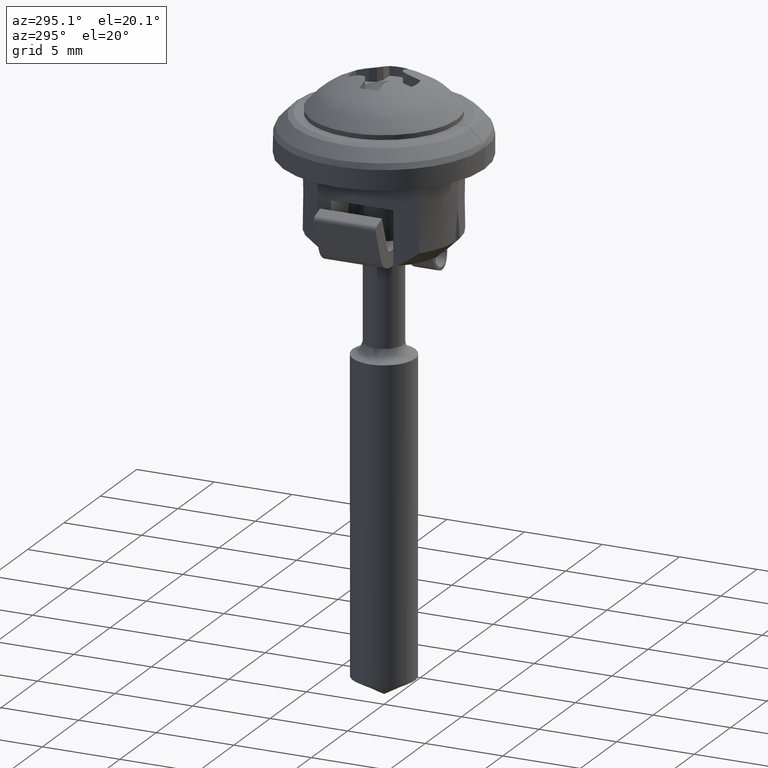
[diagram: clean part render]
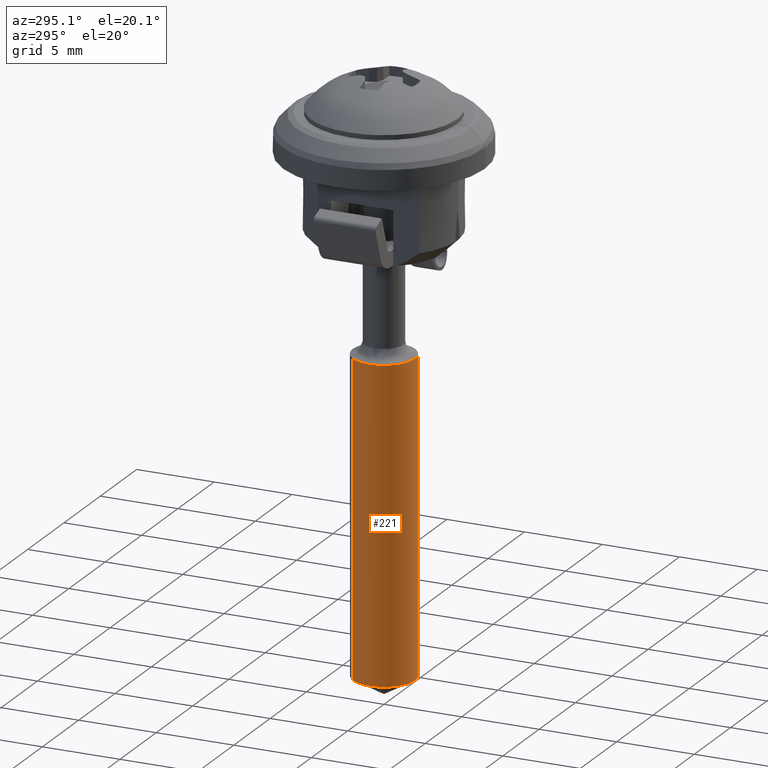
[diagram: same view with one face highlighted and labeled with its STEP entity id]
A machine part, auxiliary view. The second image highlights one B-rep face of the part: STEP entity #221.
In plain terms, the highlighted face is a freeform B-spline surface patch.
Its self-contained STEP definition (entity closure, byte-faithful):
#32=CARTESIAN_POINT('',(1.461278135000820,-1.365527669488460,-35.000000000001457));
#33=VERTEX_POINT('',#32);
#44=CARTESIAN_POINT('',(-0.000000396939959,-2.000000000000016,-35.000000000001457));
#45=VERTEX_POINT('',#44);
#46=CARTESIAN_POINT('',(1.461278135000820,-1.365527669488460,-35.000000000001457));
#47=CARTESIAN_POINT('',(1.350594617280834,-1.484024576685712,-35.000000000001421));
#48=CARTESIAN_POINT('',(1.159496121187633,-1.644144424096314,-35.000000000001592));
#49=CARTESIAN_POINT('',(0.853841220453767,-1.815903695160158,-35.000000000001343));
#50=CARTESIAN_POINT('',(0.494928560566127,-1.955680452918894,-35.000000000001577));
#51=CARTESIAN_POINT('',(0.196290678284867,-2.000073512705633,-35.000000000001393));
#52=CARTESIAN_POINT('',(-0.000000396939959,-2.000000000000016,-35.000000000001457));
#53=B_SPLINE_CURVE_WITH_KNOTS('',3,(#46,#47,#48,#49,#50,#51,#52),.UNSPECIFIED.,.F.,.U.,(4,1,1,1,4),(0.000000011602094,0.486438935696396,0.742460964327394,1.049677550075643,1.638526615176313),.UNSPECIFIED.);
#54=EDGE_CURVE('',#33,#45,#53,.T.);
#56=CARTESIAN_POINT('',(-2.000000000000058,2.449213E-016,-35.000000000001457));
#57=VERTEX_POINT('',#56);
#58=CARTESIAN_POINT('',(-0.000000396939959,-2.000000000000016,-35.000000000001457));
#59=CARTESIAN_POINT('',(-0.196358579747189,-2.000087698067359,-35.000000000001457));
#60=CARTESIAN_POINT('',(-0.531738304925421,-1.950188705849687,-35.000000000001499));
#61=CARTESIAN_POINT('',(-0.948648632512924,-1.774474503584598,-35.000000000001428));
#62=CARTESIAN_POINT('',(-1.283199050538098,-1.550930715162709,-35.000000000001378));
#63=CARTESIAN_POINT('',(-1.591713923337485,-1.242483538605780,-35.000000000001620));
#64=CARTESIAN_POINT('',(-1.823052777175489,-0.861800544181524,-35.000000000001187));
#65=CARTESIAN_POINT('',(-1.967399885217757,-0.433589498179817,-35.000000000002103));
#66=CARTESIAN_POINT('',(-2.000033411269763,-0.155443526981832,-35.000000000000632));
#67=CARTESIAN_POINT('',(-2.000000000000058,2.449213E-016,-35.000000000001457));
#68=B_SPLINE_CURVE_WITH_KNOTS('',3,(#58,#59,#60,#61,#62,#63,#64,#65,#66,#67),.UNSPECIFIED.,.F.,.U.,(4,1,1,1,1,1,1,4),(0.000000038001797,0.589048627535775,1.006302128702715,1.349921911619519,1.791690183834755,2.307121106263391,2.675285291107686,3.141612142028853),.UNSPECIFIED.);
#69=EDGE_CURVE('',#45,#57,#68,.T.);
#98=CARTESIAN_POINT('',(-1.461278135000820,1.365527669488460,-35.000000000001457));
#99=VERTEX_POINT('',#98);
#100=CARTESIAN_POINT('',(-2.000000000000058,2.449213E-016,-35.000000000001457));
#101=CARTESIAN_POINT('',(-2.000022529779380,0.140915788646491,-35.000000000001357));
#102=CARTESIAN_POINT('',(-1.972582902947172,0.399245016286654,-35.000000000001677));
#103=CARTESIAN_POINT('',(-1.865939720617946,0.744669748737319,-35.000000000001137));
#104=CARTESIAN_POINT('',(-1.704359566766486,1.067671701898822,-35.000000000002323));
#105=CARTESIAN_POINT('',(-1.557507633074588,1.262586030764244,-35.000000000000838));
#106=CARTESIAN_POINT('',(-1.461278135000820,1.365527669488460,-35.000000000001457));
#107=B_SPLINE_CURVE_WITH_KNOTS('',3,(#100,#101,#102,#103,#104,#105,#106),.UNSPECIFIED.,.F.,.U.,(4,1,1,1,4),(9.923131E-009,0.422743491771442,0.775022460100573,1.080342697789781,1.503086179633076),.UNSPECIFIED.);
#108=EDGE_CURVE('',#57,#99,#107,.T.);
#139=CARTESIAN_POINT('',(1.461278227660982,-1.365527715340922,-14.499999999999950));
#140=CARTESIAN_POINT('',(0.095750512320059,-2.826805943001905,-14.499999999999957));
#141=CARTESIAN_POINT('',(-1.365527715340922,-1.461278227660982,-14.499999999999950));
#142=CARTESIAN_POINT('',(-2.826805943001905,-0.095750512320059,-14.499999999999957));
#143=CARTESIAN_POINT('',(-1.461278227660982,1.365527715340922,-14.499999999999950));
#144=CARTESIAN_POINT('',(1.461278227660982,-1.365527715340922,-35.512500000001502));
#145=CARTESIAN_POINT('',(0.095750512320059,-2.826805943001905,-35.512500000001495));
#146=CARTESIAN_POINT('',(-1.365527715340922,-1.461278227660982,-35.512500000001502));
#147=CARTESIAN_POINT('',(-2.826805943001905,-0.095750512320059,-35.512500000001495));
#148=CARTESIAN_POINT('',(-1.461278227660982,1.365527715340922,-35.512500000001502));
#156=(BOUNDED_SURFACE()B_SPLINE_SURFACE(2,1,((#139,#144),(#140,#145),(#141,#146),(#142,#147),(#143,#148)),.UNSPECIFIED.,.F.,.F.,.U.)B_SPLINE_SURFACE_WITH_KNOTS((3,2,3),(2,2),(0.0,3.313708498984851,6.627416997969702),(0.0,21.012500000001559),.UNSPECIFIED.)GEOMETRIC_REPRESENTATION_ITEM()RATIONAL_B_SPLINE_SURFACE(((1.0,1.0),(0.707106781186548,0.707106781186548),(1.0,1.0),(0.707106781186548,0.707106781186548),(1.0,1.0)))REPRESENTATION_ITEM('')SURFACE());
#157=CARTESIAN_POINT('',(1.461278206727064,-1.365527737836028,-15.000000000000110));
#158=VERTEX_POINT('',#157);
#159=CARTESIAN_POINT('',(0.025117570299442,-1.999842270691993,-15.0));
#160=VERTEX_POINT('',#159);
#161=CARTESIAN_POINT('',(1.461278206727064,-1.365527737836028,-15.000000000000110));
#162=CARTESIAN_POINT('',(1.312199073641682,-1.525279903959694,-15.000000000000110));
#163=CARTESIAN_POINT('',(1.069020042107538,-1.711940175091765,-15.000000000000080));
#164=CARTESIAN_POINT('',(0.678414149874184,-1.890348634005936,-15.000000000000050));
#165=CARTESIAN_POINT('',(0.369377238296665,-1.976203097075063,-15.000000000000060));
#166=CARTESIAN_POINT('',(0.134348528226660,-1.998475586376248,-14.999999999999989));
#167=CARTESIAN_POINT('',(0.025117570299442,-1.999842270691993,-15.0));
#168=B_SPLINE_CURVE_WITH_KNOTS('',3,(#161,#162,#163,#164,#165,#166,#167),.UNSPECIFIED.,.F.,.U.,(4,1,1,1,4),(0.000000010743756,0.655451025343510,0.907539344752042,1.285685397334760,1.613407520649747),.UNSPECIFIED.);
#169=EDGE_CURVE('',#158,#160,#168,.T.);
#170=ORIENTED_EDGE('',*,*,#169,.T.);
#171=CARTESIAN_POINT('',(-1.999368377924439,-0.050260191171898,-14.999999999999989));
#172=VERTEX_POINT('',#171);
#173=CARTESIAN_POINT('',(0.025117570299442,-1.999842270691993,-15.0));
#174=CARTESIAN_POINT('',(-0.129071443465561,-2.001811261889504,-14.999999999999959));
#175=CARTESIAN_POINT('',(-0.380990307931207,-1.975691963652963,-15.000000000000011));
#176=CARTESIAN_POINT('',(-0.762883342539345,-1.861001481736335,-14.999999999999970));
#177=CARTESIAN_POINT('',(-1.053396429593514,-1.711819671236879,-15.000000000000060));
#178=CARTESIAN_POINT('',(-1.345820884929963,-1.491899708491571,-14.999999999999901));
#179=CARTESIAN_POINT('',(-1.565409606825322,-1.261610799805767,-15.000000000000041));
#180=CARTESIAN_POINT('',(-1.767650196885106,-0.956340716586229,-14.999999999999909));
#181=CARTESIAN_POINT('',(-1.938518006484904,-0.568261970984527,-15.000000000000030));
#182=CARTESIAN_POINT('',(-1.994557652564470,-0.244987002028327,-14.999999999999959));
#183=CARTESIAN_POINT('',(-1.999368377924439,-0.050260191171898,-14.999999999999989));
#184=B_SPLINE_CURVE_WITH_KNOTS('',3,(#173,#174,#175,#176,#177,#178,#179,#180,#181,#182,#183),.UNSPECIFIED.,.F.,.U.,(4,1,1,1,1,1,1,1,4),(0.000000039314255,0.462598775801138,0.754768584273720,1.193029792240995,1.436508061716133,1.850392093116192,2.142565529535078,2.532131454371108,3.116464643544250),.UNSPECIFIED.);
#185=EDGE_CURVE('',#160,#172,#184,.T.);
#186=ORIENTED_EDGE('',*,*,#185,.T.);
#187=CARTESIAN_POINT('',(-2.000000000000055,0.0,-14.999999999999989));
#188=VERTEX_POINT('',#187);
#189=CARTESIAN_POINT('',(-1.999368377924439,-0.050260191171898,-14.999999999999989));
#190=CARTESIAN_POINT('',(-2.000000000000055,0.0,-14.999999999999989));
#191=QUASI_UNIFORM_CURVE('',1,(#189,#190),.UNSPECIFIED.,.F.,.U.);
#192=EDGE_CURVE('',#172,#188,#191,.T.);
#193=ORIENTED_EDGE('',*,*,#192,.T.);
#194=CARTESIAN_POINT('',(-1.461278206727064,1.365527737836028,-15.000000000000099));
#195=VERTEX_POINT('',#194);
#196=CARTESIAN_POINT('',(-2.000000000000055,0.0,-14.999999999999989));
#197=CARTESIAN_POINT('',(-2.000039738592971,0.164403427244278,-14.999999999999980));
#198=CARTESIAN_POINT('',(-1.966020823808397,0.438381229651344,-15.000000000000041));
#199=CARTESIAN_POINT('',(-1.849327747566118,0.780351646180814,-15.000000000000041));
#200=CARTESIAN_POINT('',(-1.694880571137315,1.080247890819866,-15.000000000000080));
#201=CARTESIAN_POINT('',(-1.557507588521093,1.262584848376534,-15.000000000000099));
#202=CARTESIAN_POINT('',(-1.461278206727064,1.365527737836028,-15.000000000000099));
#203=B_SPLINE_CURVE_WITH_KNOTS('',3,(#196,#197,#198,#199,#200,#201,#202),.UNSPECIFIED.,.F.,.U.,(4,1,1,1,4),(9.924287E-009,0.493201747270864,0.821999711707216,1.080342725249536,1.503086217841004),.UNSPECIFIED.);
#204=EDGE_CURVE('',#188,#195,#203,.T.);
#205=ORIENTED_EDGE('',*,*,#204,.T.);
#206=CARTESIAN_POINT('',(-1.461278206727064,1.365527737836028,-15.000000000000099));
#207=CARTESIAN_POINT('',(-1.461278135000820,1.365527669488460,-35.000000000001457));
#208=QUASI_UNIFORM_CURVE('',1,(#206,#207),.UNSPECIFIED.,.F.,.U.);
#209=EDGE_CURVE('',#195,#99,#208,.T.);
#210=ORIENTED_EDGE('',*,*,#209,.T.);
#211=ORIENTED_EDGE('',*,*,#108,.F.);
#212=ORIENTED_EDGE('',*,*,#69,.F.);
#213=ORIENTED_EDGE('',*,*,#54,.F.);
#214=CARTESIAN_POINT('',(1.461278206727064,-1.365527737836028,-15.000000000000110));
#215=CARTESIAN_POINT('',(1.461278135000820,-1.365527669488460,-35.000000000001457));
#216=QUASI_UNIFORM_CURVE('',1,(#214,#215),.UNSPECIFIED.,.F.,.U.);
#217=EDGE_CURVE('',#158,#33,#216,.T.);
#218=ORIENTED_EDGE('',*,*,#217,.F.);
#219=EDGE_LOOP('',(#170,#186,#193,#205,#210,#211,#212,#213,#218));
#220=FACE_OUTER_BOUND('',#219,.T.);
#221=ADVANCED_FACE('',(#220),#156,.T.);